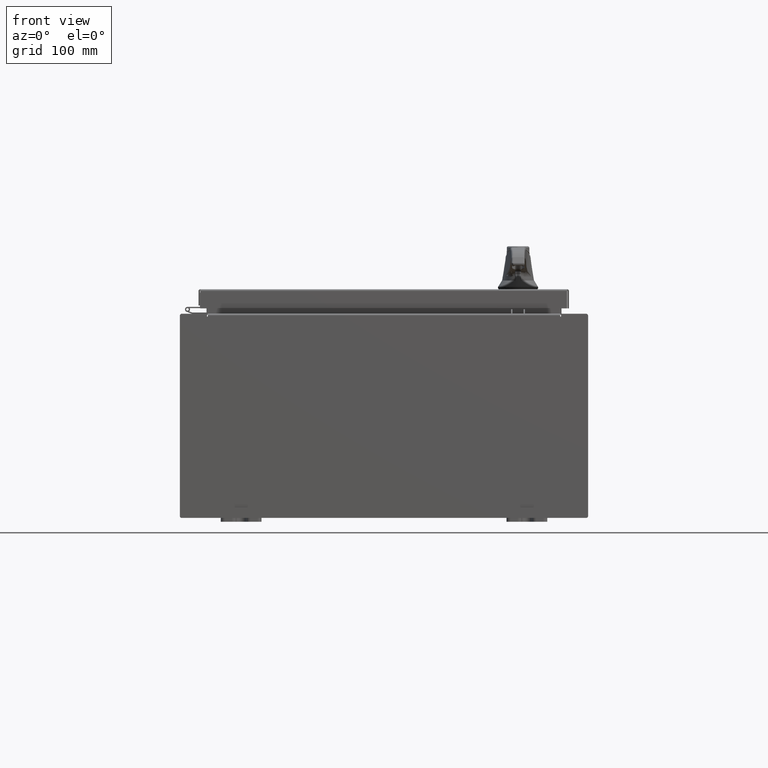
[diagram: clean part render]
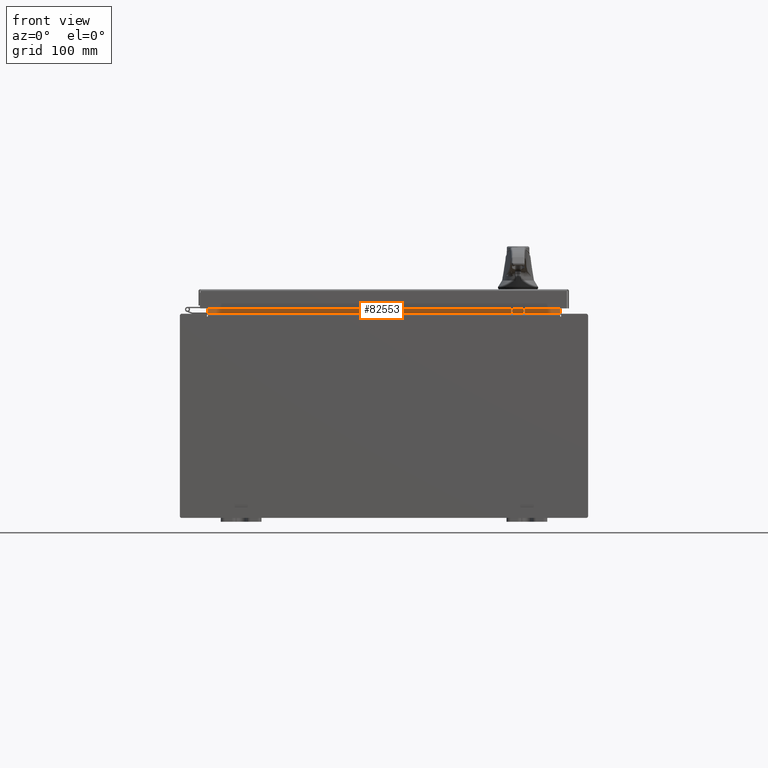
[diagram: same view with one face highlighted and labeled with its STEP entity id]
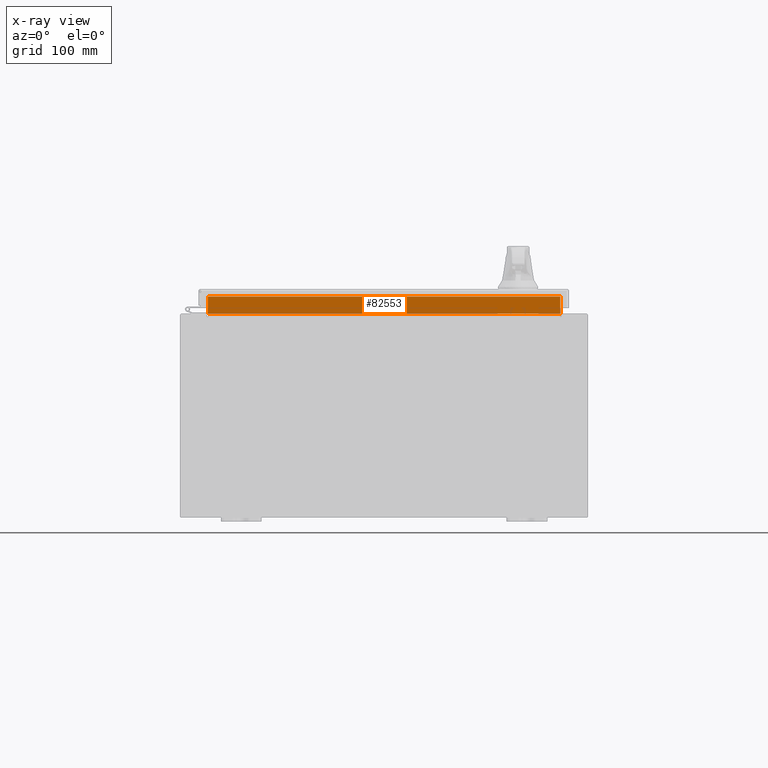
[diagram: x-ray of the same camera — body ghosted, the highlighted face saturated]
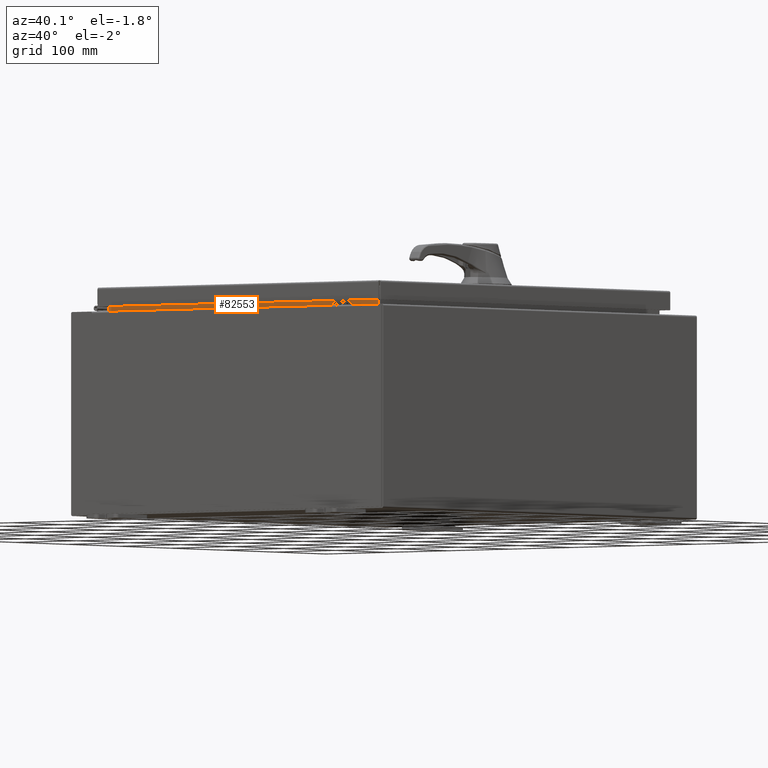
[diagram: same view with one face highlighted and labeled with its STEP entity id]
A machine part, front view. The second image highlights one B-rep face of the part: STEP entity #82553.
The next image is the same camera in x-ray: the body ghosted, the highlighted face saturated — about 0% of this face is hidden behind the body in this view.
A second angle (auxiliary view) of the same face is appended — the face is thin or edge-on in the first view.
In plain terms, the highlighted planar face has unit normal (0, -1, 0).
Its self-contained STEP definition (entity closure, byte-faithful):
#10306 = ORIENTED_EDGE ( 'NONE', *, *, #10357, .F. ) ;
#10357 = EDGE_CURVE ( 'NONE', #22927, #29690, #40521, .T. ) ;
#10880 = FACE_OUTER_BOUND ( 'NONE', #48195, .T. ) ;
#16203 = DIRECTION ( 'NONE',  ( 0.0000000000000000000, -0.0000000000000000000, 1.000000000000000000 ) ) ;
#17653 = VECTOR ( 'NONE', #59247, 39.37007874015748100 ) ;
#20354 = LINE ( 'NONE', #50483, #17653 ) ;
#22927 = VERTEX_POINT ( 'NONE', #46551 ) ;
#23653 = CARTESIAN_POINT ( 'NONE',  ( 8.637200000000000000, -1.300299999999999800, 5.925300000000004500 ) ) ;
#26461 = EDGE_CURVE ( 'NONE', #29690, #74572, #20354, .T. ) ;
#27711 = ORIENTED_EDGE ( 'NONE', *, *, #47318, .F. ) ;
#28561 = ORIENTED_EDGE ( 'NONE', *, *, #26461, .F. ) ;
#29690 = VERTEX_POINT ( 'NONE', #95303 ) ;
#39153 = CARTESIAN_POINT ( 'NONE',  ( 8.637199999999996400, -1.300299999999999800, 5.013000000000003500 ) ) ;
#40098 = LINE ( 'NONE', #105598, #63135 ) ;
#40521 = LINE ( 'NONE', #91799, #83877 ) ;
#46551 = CARTESIAN_POINT ( 'NONE',  ( 8.637200000000000000, -1.300299999999999800, 5.837600000000004600 ) ) ;
#47318 = EDGE_CURVE ( 'NONE', #74572, #72612, #40098, .T. ) ;
#48195 = EDGE_LOOP ( 'NONE', ( #28561, #10306, #71505, #27711 ) ) ;
#48280 = LINE ( 'NONE', #23653, #65914 ) ;
#50483 = CARTESIAN_POINT ( 'NONE',  ( -8.637200000000000000, -1.300299999999999800, 5.000000000000004400 ) ) ;
#53693 = DIRECTION ( 'NONE',  ( 1.000000000000000000, 0.0000000000000000000, 0.0000000000000000000 ) ) ;
#59247 = DIRECTION ( 'NONE',  ( -0.0000000000000000000, -0.0000000000000000000, -1.000000000000000000 ) ) ;
#59436 = PLANE ( 'NONE',  #87153 ) ;
#63135 = VECTOR ( 'NONE', #53693, 39.37007874015748100 ) ;
#63951 = CARTESIAN_POINT ( 'NONE',  ( -8.637200000000000000, -1.300299999999999800, 5.013000000000003500 ) ) ;
#65914 = VECTOR ( 'NONE', #101336, 39.37007874015748100 ) ;
#68138 = DIRECTION ( 'NONE',  ( 0.0000000000000000000, 1.000000000000000000, 0.0000000000000000000 ) ) ;
#71505 = ORIENTED_EDGE ( 'NONE', *, *, #94009, .F. ) ;
#72612 = VERTEX_POINT ( 'NONE', #39153 ) ;
#74572 = VERTEX_POINT ( 'NONE', #63951 ) ;
#82553 = ADVANCED_FACE ( 'NONE', ( #10880 ), #59436, .T. ) ;
#83877 = VECTOR ( 'NONE', #100502, 39.37007874015748100 ) ;
#85168 = CARTESIAN_POINT ( 'NONE',  ( 0.0000000000000000000, -1.300299999999999800, 0.0000000000000000000 ) ) ;
#87153 = AXIS2_PLACEMENT_3D ( 'NONE', #85168, #68138, #16203 ) ;
#91799 = CARTESIAN_POINT ( 'NONE',  ( 8.637200000000000000, -1.300299999999999800, 5.837600000000004600 ) ) ;
#94009 = EDGE_CURVE ( 'NONE', #72612, #22927, #48280, .T. ) ;
#95303 = CARTESIAN_POINT ( 'NONE',  ( -8.637200000000000000, -1.300299999999999800, 5.837600000000004600 ) ) ;
#100502 = DIRECTION ( 'NONE',  ( -1.000000000000000000, -0.0000000000000000000, -0.0000000000000000000 ) ) ;
#101336 = DIRECTION ( 'NONE',  ( -0.0000000000000000000, -0.0000000000000000000, 1.000000000000000000 ) ) ;
#105598 = CARTESIAN_POINT ( 'NONE',  ( -8.637200000000000000, -1.300299999999999800, 5.013000000000003500 ) ) ;